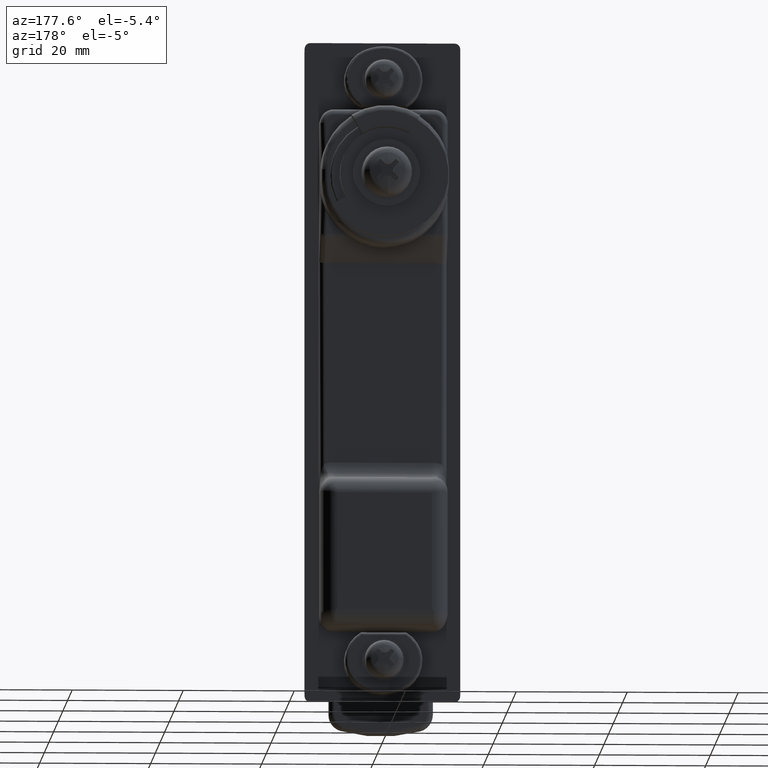
[diagram: clean part render]
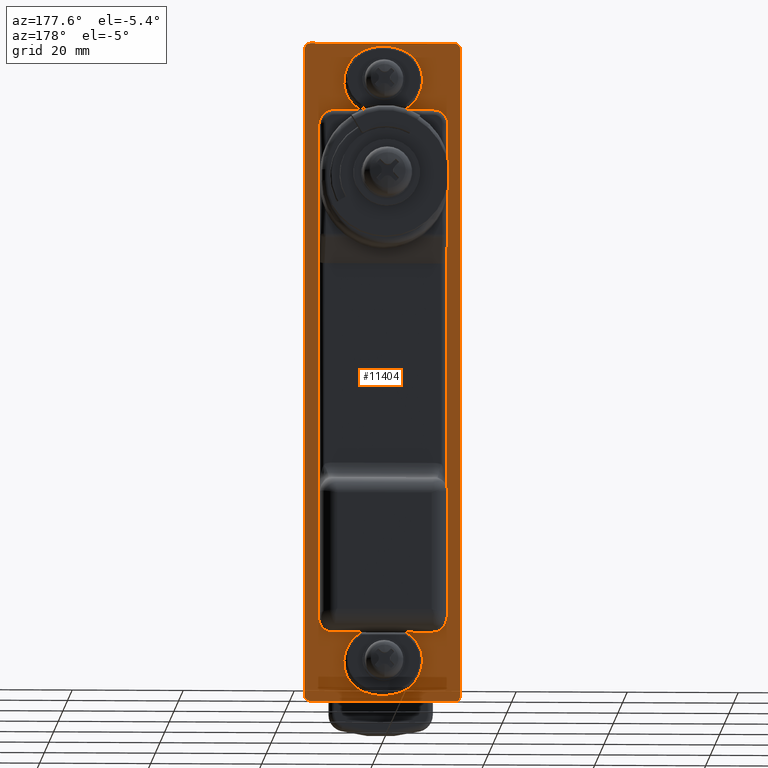
[diagram: same view with one face highlighted and labeled with its STEP entity id]
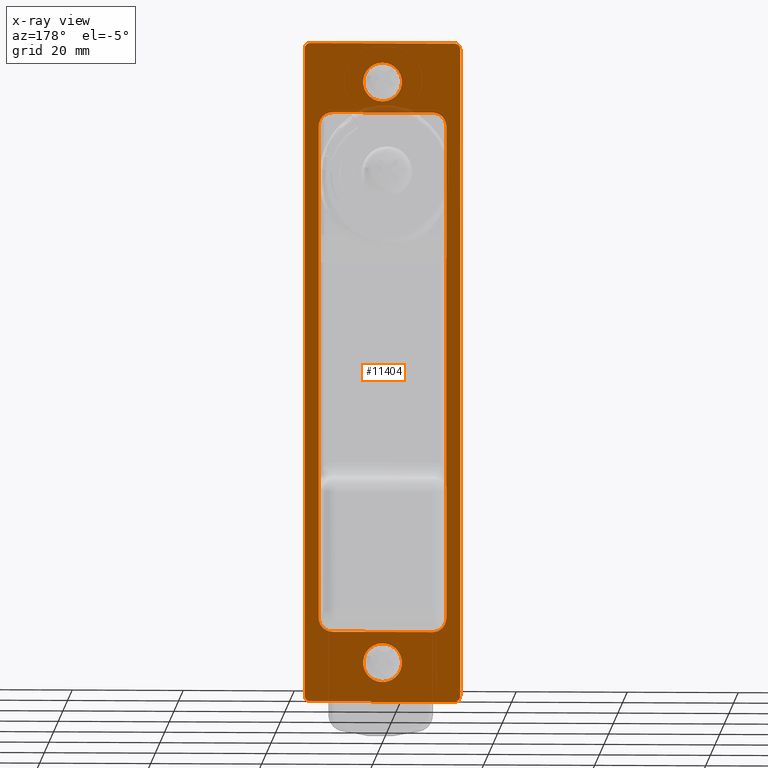
[diagram: x-ray of the same camera — body ghosted, the highlighted face saturated]
A machine part, auxiliary view. The second image highlights one B-rep face of the part: STEP entity #11404.
The next image is the same camera in x-ray: the body ghosted, the highlighted face saturated — about 1% of this face is hidden behind the body in this view.
In plain terms, the highlighted planar face has unit normal (0, -1, 0).
Its self-contained STEP definition (entity closure, byte-faithful):
#5851 = CARTESIAN_POINT ( 'NONE',  ( -17.49999999999920100, 0.0000000000000000000, 21.49999999999895900 ) ) ;
#5852 = DIRECTION ( 'NONE',  ( 0.0000000000000000000, 0.0000000000000000000, 1.000000000000000000 ) ) ;
#5853 = DIRECTION ( 'NONE',  ( 1.000000000000000000, 0.0000000000000000000, 0.0000000000000000000 ) ) ;
#5854 = CARTESIAN_POINT ( 'NONE',  ( -17.49999999999920100, 0.0000000000000000000, 17.99999999999920100 ) ) ;
#5855 = AXIS2_PLACEMENT_3D ( 'NONE', #5854, #5853, #5852 ) ;
#5856 = CIRCLE ( 'NONE', #5855, 3.499999999999756600 ) ;
#5893 = DIRECTION ( 'NONE',  ( 0.0000000000000000000, 0.0000000000000000000, 1.000000000000000000 ) ) ;
#5894 = DIRECTION ( 'NONE',  ( 1.000000000000000000, 0.0000000000000000000, 0.0000000000000000000 ) ) ;
#5895 = CARTESIAN_POINT ( 'NONE',  ( -17.49999999999920100, 0.0000000000000000000, -87.00000000001000400 ) ) ;
#5896 = AXIS2_PLACEMENT_3D ( 'NONE', #5895, #5894, #5893 ) ;
#5897 = CIRCLE ( 'NONE', #5896, 3.499999999999753100 ) ;
#5898 = CARTESIAN_POINT ( 'NONE',  ( -17.49999999999920100, 4.286122238378020600E-016, 14.49999999999944600 ) ) ;
#6119 = CARTESIAN_POINT ( 'NONE',  ( -17.49999999999920100, 0.0000000000000000000, -90.50000000000974900 ) ) ;
#6286 = CARTESIAN_POINT ( 'NONE',  ( -17.49999999999920100, -4.286122238378022600E-016, -83.50000000001024600 ) ) ;
#6536 = PLANE ( 'NONE',  #6590 ) ;
#6537 = FACE_BOUND ( 'NONE', #11389, .T. ) ;
#6538 = FACE_BOUND ( 'NONE', #11659, .T. ) ;
#6539 = FACE_OUTER_BOUND ( 'NONE', #11409, .T. ) ;
#6540 = FACE_BOUND ( 'NONE', #11405, .T. ) ;
#6551 = CARTESIAN_POINT ( 'NONE',  ( -17.49999999999920100, 14.00000000000000000, -93.00000000000979100 ) ) ;
#6552 = CARTESIAN_POINT ( 'NONE',  ( -17.49999999999920100, 13.00000000000000000, -94.00000000000979100 ) ) ;
#6563 = DIRECTION ( 'NONE',  ( 0.0000000000000000000, 0.0000000000000000000, 1.000000000000000000 ) ) ;
#6564 = DIRECTION ( 'NONE',  ( 1.000000000000000000, 0.0000000000000000000, 0.0000000000000000000 ) ) ;
#6565 = CARTESIAN_POINT ( 'NONE',  ( -17.49999999999920100, 0.0000000000000000000, -87.00000000001000400 ) ) ;
#6566 = AXIS2_PLACEMENT_3D ( 'NONE', #6565, #6564, #6563 ) ;
#6567 = CIRCLE ( 'NONE', #6566, 3.499999999999753100 ) ;
#6568 = DIRECTION ( 'NONE',  ( 0.0000000000000000000, 0.0000000000000000000, 1.000000000000000000 ) ) ;
#6569 = DIRECTION ( 'NONE',  ( -1.000000000000000000, 0.0000000000000000000, 0.0000000000000000000 ) ) ;
#6570 = CARTESIAN_POINT ( 'NONE',  ( -17.49999999999920100, -9.000000000000000000, 9.999999999996308700 ) ) ;
#6571 = AXIS2_PLACEMENT_3D ( 'NONE', #6570, #6569, #6568 ) ;
#6572 = DIRECTION ( 'NONE',  ( 0.0000000000000000000, 0.0000000000000000000, 1.000000000000000000 ) ) ;
#6573 = VECTOR ( 'NONE', #6572, 1000.000000000000000 ) ;
#6574 = CARTESIAN_POINT ( 'NONE',  ( -17.49999999999920100, -14.00000000000000000, -97.72965304707409500 ) ) ;
#6575 = LINE ( 'NONE', #6574, #6573 ) ;
#6577 = CARTESIAN_POINT ( 'NONE',  ( -17.49999999999920100, -13.00000000000000000, 24.99999999999899800 ) ) ;
#6578 = DIRECTION ( 'NONE',  ( 0.0000000000000000000, 1.000000000000000000, 0.0000000000000000000 ) ) ;
#6579 = VECTOR ( 'NONE', #6578, 1000.000000000000000 ) ;
#6580 = CARTESIAN_POINT ( 'NONE',  ( -17.49999999999920100, -986.0000000000000000, 24.99999999999899800 ) ) ;
#6581 = LINE ( 'NONE', #6580, #6579 ) ;
#6582 = DIRECTION ( 'NONE',  ( 0.0000000000000000000, 0.0000000000000000000, 1.000000000000000000 ) ) ;
#6583 = DIRECTION ( 'NONE',  ( 1.000000000000000000, 0.0000000000000000000, 0.0000000000000000000 ) ) ;
#6584 = CARTESIAN_POINT ( 'NONE',  ( -17.49999999999920100, 0.0000000000000000000, 17.99999999999920100 ) ) ;
#6585 = AXIS2_PLACEMENT_3D ( 'NONE', #6584, #6583, #6582 ) ;
#6586 = CIRCLE ( 'NONE', #6585, 3.499999999999756600 ) ;
#6587 = DIRECTION ( 'NONE',  ( 0.0000000000000000000, 0.0000000000000000000, 1.000000000000000000 ) ) ;
#6588 = DIRECTION ( 'NONE',  ( -1.000000000000000000, 0.0000000000000000000, 0.0000000000000000000 ) ) ;
#6589 = CARTESIAN_POINT ( 'NONE',  ( -17.49999999999920100, -986.0000000000000000, -97.72965304707409500 ) ) ;
#6590 = AXIS2_PLACEMENT_3D ( 'NONE', #6589, #6588, #6587 ) ;
#6591 = CIRCLE ( 'NONE', #6571, 2.500000000000000400 ) ;
#6767 = DIRECTION ( 'NONE',  ( 0.0000000000000000000, 0.0000000000000000000, 1.000000000000000000 ) ) ;
#6768 = VECTOR ( 'NONE', #6767, 1000.000000000000000 ) ;
#6769 = CARTESIAN_POINT ( 'NONE',  ( -17.49999999999920100, 14.00000000000000000, -97.72965304707409500 ) ) ;
#6770 = LINE ( 'NONE', #6769, #6768 ) ;
#6771 = CARTESIAN_POINT ( 'NONE',  ( -17.49999999999920100, 14.00000000000000000, 23.99999999999899800 ) ) ;
#6935 = CARTESIAN_POINT ( 'NONE',  ( -17.49999999999920100, 11.50000000000000000, 9.999999999996308700 ) ) ;
#6936 = DIRECTION ( 'NONE',  ( 0.0000000000000000000, 0.0000000000000000000, -1.000000000000000000 ) ) ;
#6937 = VECTOR ( 'NONE', #6936, 1000.000000000000000 ) ;
#6938 = CARTESIAN_POINT ( 'NONE',  ( -17.49999999999920100, 11.50000000000000000, 0.0000000000000000000 ) ) ;
#6939 = LINE ( 'NONE', #6938, #6937 ) ;
#6940 = CARTESIAN_POINT ( 'NONE',  ( -17.49999999999920100, 11.50000000000000000, -78.93516326708339600 ) ) ;
#7017 = CARTESIAN_POINT ( 'NONE',  ( -17.49999999999920100, -11.50000000000000000, -78.93516326708339600 ) ) ;
#7018 = DIRECTION ( 'NONE',  ( 0.0000000000000000000, 0.0000000000000000000, -1.000000000000000000 ) ) ;
#7019 = VECTOR ( 'NONE', #7018, 1000.000000000000000 ) ;
#7020 = CARTESIAN_POINT ( 'NONE',  ( -17.49999999999920100, -11.50000000000000000, 0.0000000000000000000 ) ) ;
#7021 = LINE ( 'NONE', #7020, #7019 ) ;
#7022 = CARTESIAN_POINT ( 'NONE',  ( -17.49999999999920100, -11.50000000000000000, 9.999999999996308700 ) ) ;
#7147 = CARTESIAN_POINT ( 'NONE',  ( -17.49999999999920100, -14.00000000000000000, 23.99999999999899800 ) ) ;
#7148 = CARTESIAN_POINT ( 'NONE',  ( -17.49999999999920100, 9.000000000000000000, -81.43715368307729800 ) ) ;
#7149 = CARTESIAN_POINT ( 'NONE',  ( -17.49999999999920400, 9.330273631315463900, -81.43715368307719900 ) ) ;
#7150 = CARTESIAN_POINT ( 'NONE',  ( -17.49999999999920100, 9.658447776881429200, -81.37070598980682200 ) ) ;
#7151 = CARTESIAN_POINT ( 'NONE',  ( -17.49999999999920400, 10.10940111266167000, -81.18322619845230300 ) ) ;
#7152 = CARTESIAN_POINT ( 'NONE',  ( -17.49999999999920100, 10.25486666207991600, -81.10537493035967300 ) ) ;
#7153 = CARTESIAN_POINT ( 'NONE',  ( -17.49999999999920800, 10.52783835199936000, -80.92237695434900500 ) ) ;
#7154 = CARTESIAN_POINT ( 'NONE',  ( -17.49999999999920100, 10.65355761841223800, -80.81877831359838600 ) ) ;
#7155 = CARTESIAN_POINT ( 'NONE',  ( -17.49999999999920100, 10.88395806836894400, -80.58793809891881200 ) ) ;
#7156 = CARTESIAN_POINT ( 'NONE',  ( -17.49999999999920100, 10.98941322848069600, -80.45917859671038700 ) ) ;
#7157 = CARTESIAN_POINT ( 'NONE',  ( -17.49999999999920100, 11.17054415989299100, -80.18732912770019500 ) ) ;
#7158 = CARTESIAN_POINT ( 'NONE',  ( -17.49999999999920100, 11.24720810179201400, -80.04370019117625600 ) ) ;
#7159 = CARTESIAN_POINT ( 'NONE',  ( -17.49999999999920100, 11.37248023929119600, -79.74089386888805100 ) ) ;
#7160 = CARTESIAN_POINT ( 'NONE',  ( -17.49999999999920100, 11.42044799799453400, -79.58215005960092000 ) ) ;
#7161 = CARTESIAN_POINT ( 'NONE',  ( -17.49999999999920800, 11.48382570188951800, -79.26267536129790900 ) ) ;
#7162 = CARTESIAN_POINT ( 'NONE',  ( -17.49999999999920400, 11.50000000000000200, -79.10029632539719600 ) ) ;
#7163 = DIRECTION ( 'NONE',  ( 0.0000000000000000000, -1.000000000000000000, 0.0000000000000000000 ) ) ;
#7164 = VECTOR ( 'NONE', #7163, 1000.000000000000000 ) ;
#7165 = CARTESIAN_POINT ( 'NONE',  ( -17.49999999999920100, 988.5000000000000000, -81.43715368307729800 ) ) ;
#7166 = LINE ( 'NONE', #7165, #7164 ) ;
#7167 = CARTESIAN_POINT ( 'NONE',  ( -17.49999999999920100, -10.25191721734375800, -81.10700737038857300 ) ) ;
#7168 = CARTESIAN_POINT ( 'NONE',  ( -17.49999999999920100, -10.10836402329097800, -81.18381446637127400 ) ) ;
#7169 = CARTESIAN_POINT ( 'NONE',  ( -17.49999999999920400, -9.805687619398003800, -81.30933309193683600 ) ) ;
#7170 = CARTESIAN_POINT ( 'NONE',  ( -17.49999999999919400, -9.646956425676664900, -81.35741579672802000 ) ) ;
#7171 = CARTESIAN_POINT ( 'NONE',  ( -17.49999999999920100, -9.327507447516572000, -81.42094030757563400 ) ) ;
#7172 = CARTESIAN_POINT ( 'NONE',  ( -17.49999999999920100, -9.165134529658313800, -81.43715368307728400 ) ) ;
#7173 = CARTESIAN_POINT ( 'NONE',  ( -17.49999999999920100, -9.000000000000000000, -81.43715368307729800 ) ) ;
#7179 = B_SPLINE_CURVE_WITH_KNOTS ( 'NONE', 3,
 ( #7173, #7172, #7171, #7170, #7169, #7168, #7167, #7295, #7294, #7293, #7292, #7291, #7290, #7289, #7288, #7287 ),
 .UNSPECIFIED., .F., .F.,
 ( 4, 2, 2, 2, 2, 2, 2, 4 ),
 ( 0.0000000000000000000, 0.0004883699336044716200, 0.0009767398672089432300, 0.001465109800813415000, 0.001953479734417886500, 0.002441849668022357800, 0.002930219601626829900, 0.003906959468835813700 ),
 .UNSPECIFIED. ) ;
#7180 = CARTESIAN_POINT ( 'NONE',  ( -17.49999999999920100, -9.000000000000000000, -81.43715368307729800 ) ) ;
#7181 = CARTESIAN_POINT ( 'NONE',  ( -17.49999999999920100, -14.00000000000000000, -93.00000000000979100 ) ) ;
#7204 = CARTESIAN_POINT ( 'NONE',  ( -17.49999999999920100, -13.00000000000000000, -94.00000000000979100 ) ) ;
#7228 = CARTESIAN_POINT ( 'NONE',  ( -17.49999999999920100, 11.50000000000000000, -78.93516326708339600 ) ) ;
#7229 = B_SPLINE_CURVE_WITH_KNOTS ( 'NONE', 3,
 ( #7228, #7162, #7161, #7160, #7159, #7158, #7157, #7156, #7155, #7154, #7153, #7152, #7151, #7150, #7149, #7148 ),
 .UNSPECIFIED., .F., .F.,
 ( 4, 2, 2, 2, 2, 2, 2, 4 ),
 ( 0.0000000000000000000, 0.0004883702463901358500, 0.0009767404927802717000, 0.001465110739170407500, 0.001953480985560543400, 0.002441851231950679200, 0.002930221478340815100, 0.003906961971121086800 ),
 .UNSPECIFIED. ) ;
#7230 = CARTESIAN_POINT ( 'NONE',  ( -17.49999999999920100, 9.000000000000000000, -81.43715368307729800 ) ) ;
#7231 = DIRECTION ( 'NONE',  ( 0.0000000000000000000, 0.0000000000000000000, 1.000000000000000000 ) ) ;
#7232 = DIRECTION ( 'NONE',  ( -1.000000000000000000, 0.0000000000000000000, 0.0000000000000000000 ) ) ;
#7233 = CARTESIAN_POINT ( 'NONE',  ( -17.49999999999920100, 9.000000000000000000, 9.999999999996308700 ) ) ;
#7234 = AXIS2_PLACEMENT_3D ( 'NONE', #7233, #7232, #7231 ) ;
#7235 = CIRCLE ( 'NONE', #7234, 2.500000000000000400 ) ;
#7236 = CARTESIAN_POINT ( 'NONE',  ( -17.49999999999920100, -9.000000000000000000, 12.49999999999630000 ) ) ;
#7237 = CARTESIAN_POINT ( 'NONE',  ( -17.49999999999920100, 9.000000000000000000, 12.49999999999630000 ) ) ;
#7238 = DIRECTION ( 'NONE',  ( 0.0000000000000000000, -1.000000000000000000, 0.0000000000000000000 ) ) ;
#7239 = VECTOR ( 'NONE', #7238, 1000.000000000000000 ) ;
#7240 = CARTESIAN_POINT ( 'NONE',  ( -17.49999999999920100, 988.5000000000000000, 12.49999999999630000 ) ) ;
#7241 = LINE ( 'NONE', #7240, #7239 ) ;
#7242 = DIRECTION ( 'NONE',  ( 0.0000000000000000000, 0.0000000000000000000, 1.000000000000000000 ) ) ;
#7243 = DIRECTION ( 'NONE',  ( 1.000000000000000000, 0.0000000000000000000, 0.0000000000000000000 ) ) ;
#7244 = CARTESIAN_POINT ( 'NONE',  ( -17.49999999999920100, 13.00000000000000000, 23.99999999999899800 ) ) ;
#7245 = AXIS2_PLACEMENT_3D ( 'NONE', #7244, #7243, #7242 ) ;
#7246 = CIRCLE ( 'NONE', #7245, 1.000000000000000900 ) ;
#7287 = CARTESIAN_POINT ( 'NONE',  ( -17.49999999999920100, -11.50000000000000000, -78.93516326708339600 ) ) ;
#7288 = CARTESIAN_POINT ( 'NONE',  ( -17.49999999999920100, -11.49999999999999500, -79.26542490673723800 ) ) ;
#7289 = CARTESIAN_POINT ( 'NONE',  ( -17.49999999999920100, -11.43372295761238500, -79.59361515415136500 ) ) ;
#7290 = CARTESIAN_POINT ( 'NONE',  ( -17.49999999999920400, -11.24662417787838300, -80.04472951624970300 ) ) ;
#7291 = CARTESIAN_POINT ( 'NONE',  ( -17.49999999999919700, -11.16896517263347000, -80.19020043648309600 ) ) ;
#7292 = CARTESIAN_POINT ( 'NONE',  ( -17.49999999999920800, -10.98622956737878400, -80.46344202508412000 ) ) ;
#7293 = CARTESIAN_POINT ( 'NONE',  ( -17.49999999999920100, -10.88276898320754100, -80.58929364015568800 ) ) ;
#7294 = CARTESIAN_POINT ( 'NONE',  ( -17.49999999999920400, -10.65221856023910800, -80.81995393016225600 ) ) ;
#7295 = CARTESIAN_POINT ( 'NONE',  ( -17.49999999999919700, -10.52359690336904500, -80.92555621675629100 ) ) ;
#8141 = CARTESIAN_POINT ( 'NONE',  ( -17.49999999999920100, 13.00000000000000000, -93.00000000000979100 ) ) ;
#8142 = CIRCLE ( 'NONE', #8239, 1.000000000000000900 ) ;
#8143 = DIRECTION ( 'NONE',  ( 0.0000000000000000000, 0.0000000000000000000, 1.000000000000000000 ) ) ;
#8144 = DIRECTION ( 'NONE',  ( 1.000000000000000000, 0.0000000000000000000, 0.0000000000000000000 ) ) ;
#8145 = CARTESIAN_POINT ( 'NONE',  ( -17.49999999999920100, -13.00000000000000000, -93.00000000000979100 ) ) ;
#8146 = AXIS2_PLACEMENT_3D ( 'NONE', #8145, #8144, #8143 ) ;
#8147 = CIRCLE ( 'NONE', #8146, 1.000000000000000900 ) ;
#8148 = DIRECTION ( 'NONE',  ( 0.0000000000000000000, 0.0000000000000000000, 1.000000000000000000 ) ) ;
#8149 = DIRECTION ( 'NONE',  ( 1.000000000000000000, 0.0000000000000000000, 0.0000000000000000000 ) ) ;
#8150 = CARTESIAN_POINT ( 'NONE',  ( -17.49999999999920100, -13.00000000000000000, 23.99999999999899800 ) ) ;
#8151 = AXIS2_PLACEMENT_3D ( 'NONE', #8150, #8149, #8148 ) ;
#8152 = CIRCLE ( 'NONE', #8151, 1.000000000000000900 ) ;
#8153 = CARTESIAN_POINT ( 'NONE',  ( -17.49999999999920100, 13.00000000000000000, 24.99999999999899800 ) ) ;
#8229 = DIRECTION ( 'NONE',  ( 0.0000000000000000000, 1.000000000000000000, 0.0000000000000000000 ) ) ;
#8230 = VECTOR ( 'NONE', #8229, 1000.000000000000000 ) ;
#8231 = CARTESIAN_POINT ( 'NONE',  ( -17.49999999999920100, -986.0000000000000000, -94.00000000000979100 ) ) ;
#8232 = LINE ( 'NONE', #8231, #8230 ) ;
#8237 = DIRECTION ( 'NONE',  ( 0.0000000000000000000, 0.0000000000000000000, 1.000000000000000000 ) ) ;
#8238 = DIRECTION ( 'NONE',  ( 1.000000000000000000, 0.0000000000000000000, 0.0000000000000000000 ) ) ;
#8239 = AXIS2_PLACEMENT_3D ( 'NONE', #8141, #8238, #8237 ) ;
#11039 = VERTEX_POINT ( 'NONE', #5898 ) ;
#11041 = EDGE_CURVE ( 'NONE', #11239, #11214, #5897, .T. ) ;
#11049 = EDGE_CURVE ( 'NONE', #11039, #11050, #5856, .T. ) ;
#11050 = VERTEX_POINT ( 'NONE', #5851 ) ;
#11214 = VERTEX_POINT ( 'NONE', #6119 ) ;
#11239 = VERTEX_POINT ( 'NONE', #6286 ) ;
#11388 = EDGE_CURVE ( 'NONE', #11502, #11663, #6591, .T. ) ;
#11389 = EDGE_LOOP ( 'NONE', ( #11390, #11392 ) ) ;
#11390 = ORIENTED_EDGE ( 'NONE', *, *, #11391, .F. ) ;
#11391 = EDGE_CURVE ( 'NONE', #11214, #11239, #6567, .T. ) ;
#11392 = ORIENTED_EDGE ( 'NONE', *, *, #11041, .F. ) ;
#11396 = VERTEX_POINT ( 'NONE', #6552 ) ;
#11398 = VERTEX_POINT ( 'NONE', #6551 ) ;
#11404 = ADVANCED_FACE ( 'NONE', ( #6540, #6539, #6538, #6537 ), #6536, .F. ) ;
#11405 = EDGE_LOOP ( 'NONE', ( #11406, #11408 ) ) ;
#11406 = ORIENTED_EDGE ( 'NONE', *, *, #11407, .F. ) ;
#11407 = EDGE_CURVE ( 'NONE', #11050, #11039, #6586, .T. ) ;
#11408 = ORIENTED_EDGE ( 'NONE', *, *, #11049, .F. ) ;
#11409 = EDGE_LOOP ( 'NONE', ( #11410, #12000, #12002, #12003, #12005, #12006, #12008, #11657 ) ) ;
#11410 = ORIENTED_EDGE ( 'NONE', *, *, #11411, .F. ) ;
#11411 = EDGE_CURVE ( 'NONE', #11412, #11999, #6581, .T. ) ;
#11412 = VERTEX_POINT ( 'NONE', #6577 ) ;
#11413 = EDGE_CURVE ( 'NONE', #11685, #11672, #6575, .T. ) ;
#11425 = VERTEX_POINT ( 'NONE', #6771 ) ;
#11427 = EDGE_CURVE ( 'NONE', #11398, #11425, #6770, .T. ) ;
#11493 = VERTEX_POINT ( 'NONE', #6940 ) ;
#11495 = EDGE_CURVE ( 'NONE', #11496, #11493, #6939, .T. ) ;
#11496 = VERTEX_POINT ( 'NONE', #6935 ) ;
#11502 = VERTEX_POINT ( 'NONE', #7022 ) ;
#11504 = EDGE_CURVE ( 'NONE', #11502, #11505, #7021, .T. ) ;
#11505 = VERTEX_POINT ( 'NONE', #7017 ) ;
#11647 = VERTEX_POINT ( 'NONE', #7204 ) ;
#11657 = ORIENTED_EDGE ( 'NONE', *, *, #11658, .T. ) ;
#11658 = EDGE_CURVE ( 'NONE', #11425, #11999, #7246, .T. ) ;
#11659 = EDGE_LOOP ( 'NONE', ( #11660, #11664, #11666, #11667, #11670, #11688, #11690, #11691 ) ) ;
#11660 = ORIENTED_EDGE ( 'NONE', *, *, #11661, .F. ) ;
#11661 = EDGE_CURVE ( 'NONE', #11662, #11663, #7241, .T. ) ;
#11662 = VERTEX_POINT ( 'NONE', #7237 ) ;
#11663 = VERTEX_POINT ( 'NONE', #7236 ) ;
#11664 = ORIENTED_EDGE ( 'NONE', *, *, #11665, .T. ) ;
#11665 = EDGE_CURVE ( 'NONE', #11662, #11496, #7235, .T. ) ;
#11666 = ORIENTED_EDGE ( 'NONE', *, *, #11495, .T. ) ;
#11667 = ORIENTED_EDGE ( 'NONE', *, *, #11668, .T. ) ;
#11668 = EDGE_CURVE ( 'NONE', #11493, #11669, #7229, .T. ) ;
#11669 = VERTEX_POINT ( 'NONE', #7230 ) ;
#11670 = ORIENTED_EDGE ( 'NONE', *, *, #11671, .T. ) ;
#11671 = EDGE_CURVE ( 'NONE', #11669, #11687, #7166, .T. ) ;
#11672 = VERTEX_POINT ( 'NONE', #7147 ) ;
#11685 = VERTEX_POINT ( 'NONE', #7181 ) ;
#11687 = VERTEX_POINT ( 'NONE', #7180 ) ;
#11688 = ORIENTED_EDGE ( 'NONE', *, *, #11689, .T. ) ;
#11689 = EDGE_CURVE ( 'NONE', #11687, #11505, #7179, .T. ) ;
#11690 = ORIENTED_EDGE ( 'NONE', *, *, #11504, .F. ) ;
#11691 = ORIENTED_EDGE ( 'NONE', *, *, #11388, .T. ) ;
#11999 = VERTEX_POINT ( 'NONE', #8153 ) ;
#12000 = ORIENTED_EDGE ( 'NONE', *, *, #12001, .T. ) ;
#12001 = EDGE_CURVE ( 'NONE', #11412, #11672, #8152, .T. ) ;
#12002 = ORIENTED_EDGE ( 'NONE', *, *, #11413, .F. ) ;
#12003 = ORIENTED_EDGE ( 'NONE', *, *, #12004, .T. ) ;
#12004 = EDGE_CURVE ( 'NONE', #11685, #11647, #8147, .T. ) ;
#12005 = ORIENTED_EDGE ( 'NONE', *, *, #12012, .T. ) ;
#12006 = ORIENTED_EDGE ( 'NONE', *, *, #12007, .T. ) ;
#12007 = EDGE_CURVE ( 'NONE', #11396, #11398, #8142, .T. ) ;
#12008 = ORIENTED_EDGE ( 'NONE', *, *, #11427, .T. ) ;
#12012 = EDGE_CURVE ( 'NONE', #11647, #11396, #8232, .T. ) ;